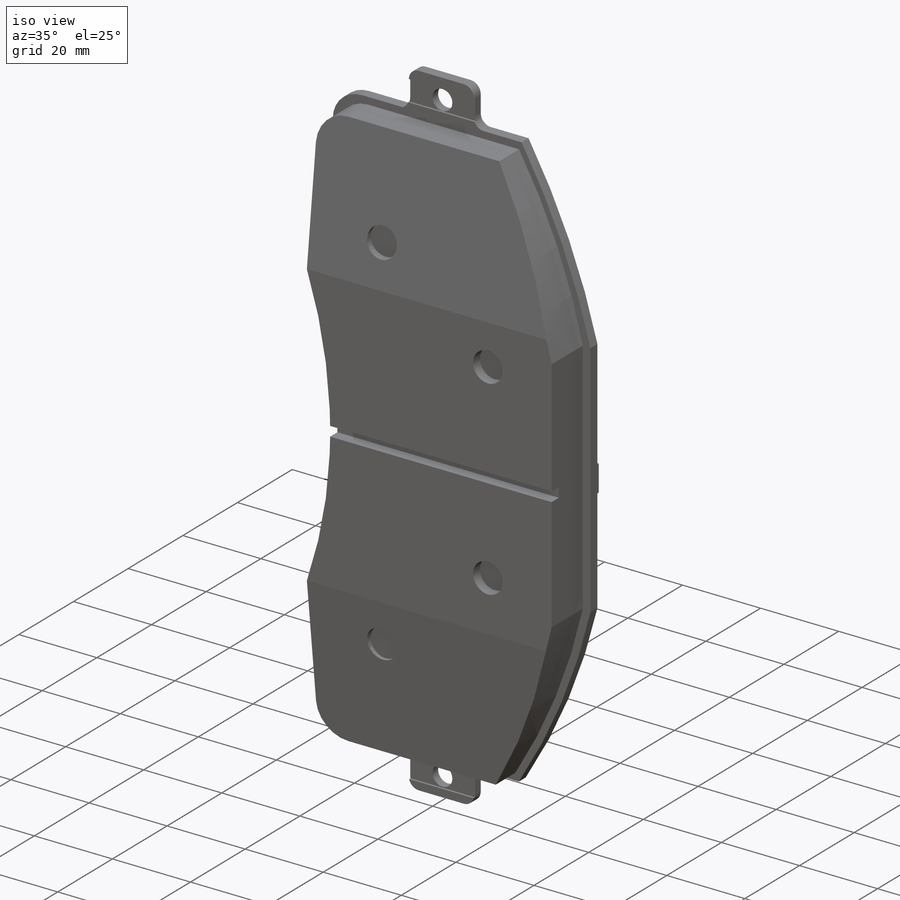
[diagram: iso view]
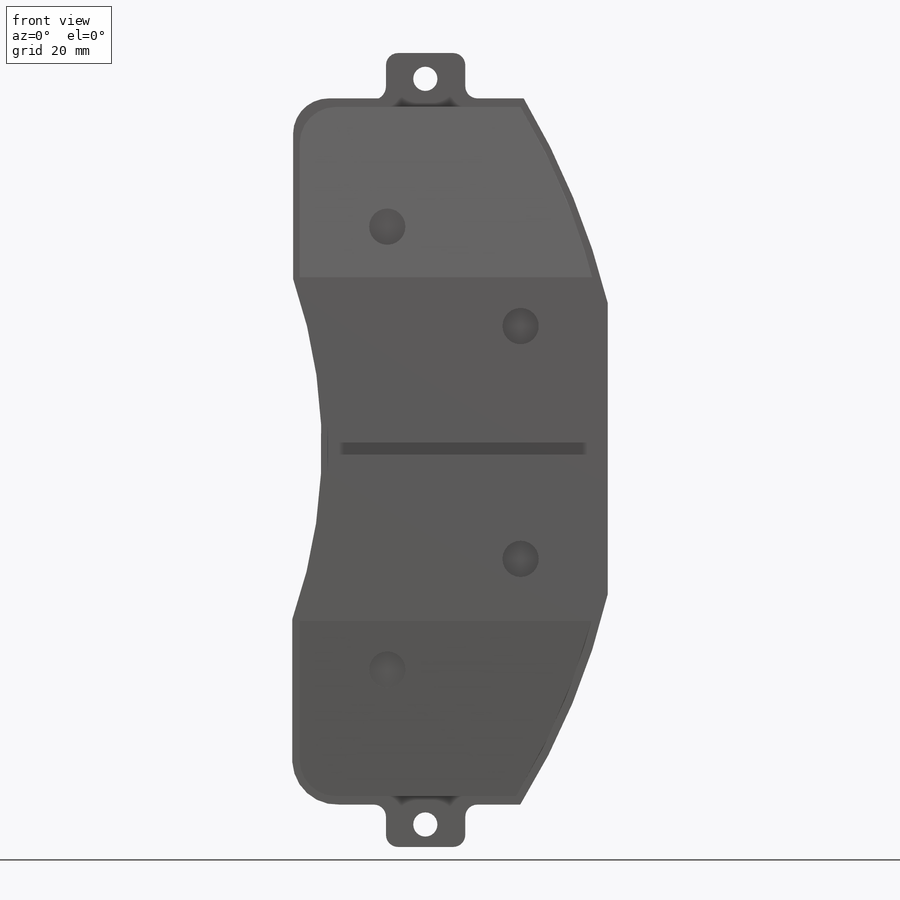
[diagram: front view]
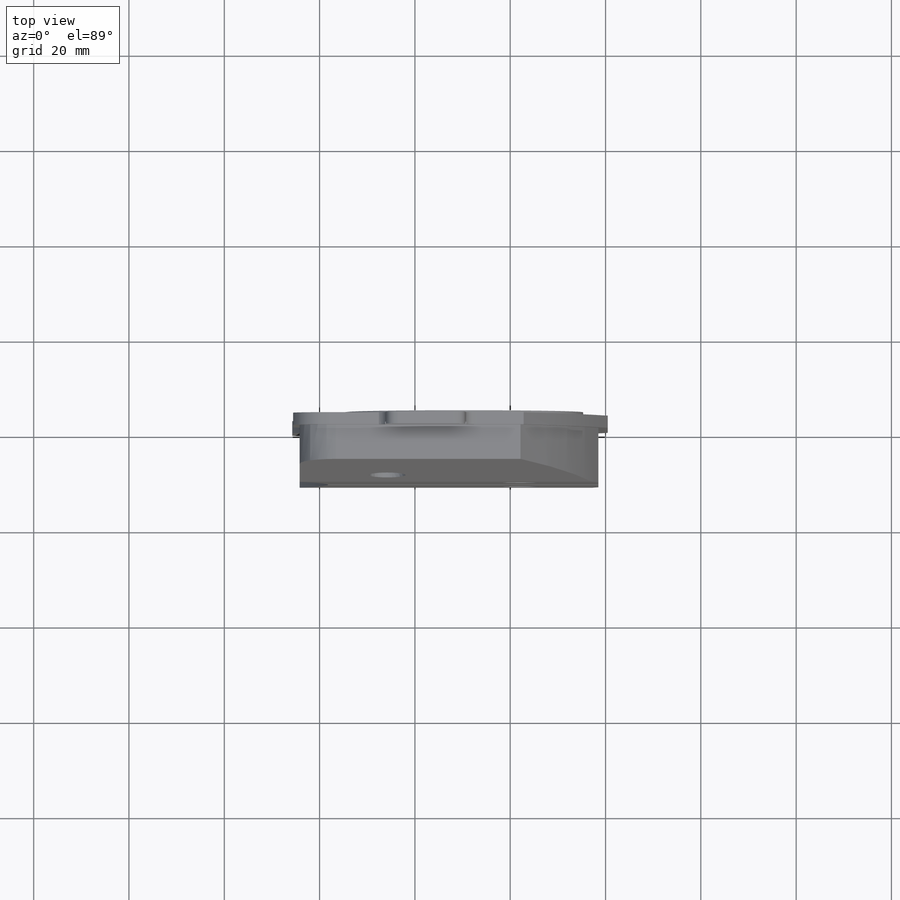
[diagram: top view]
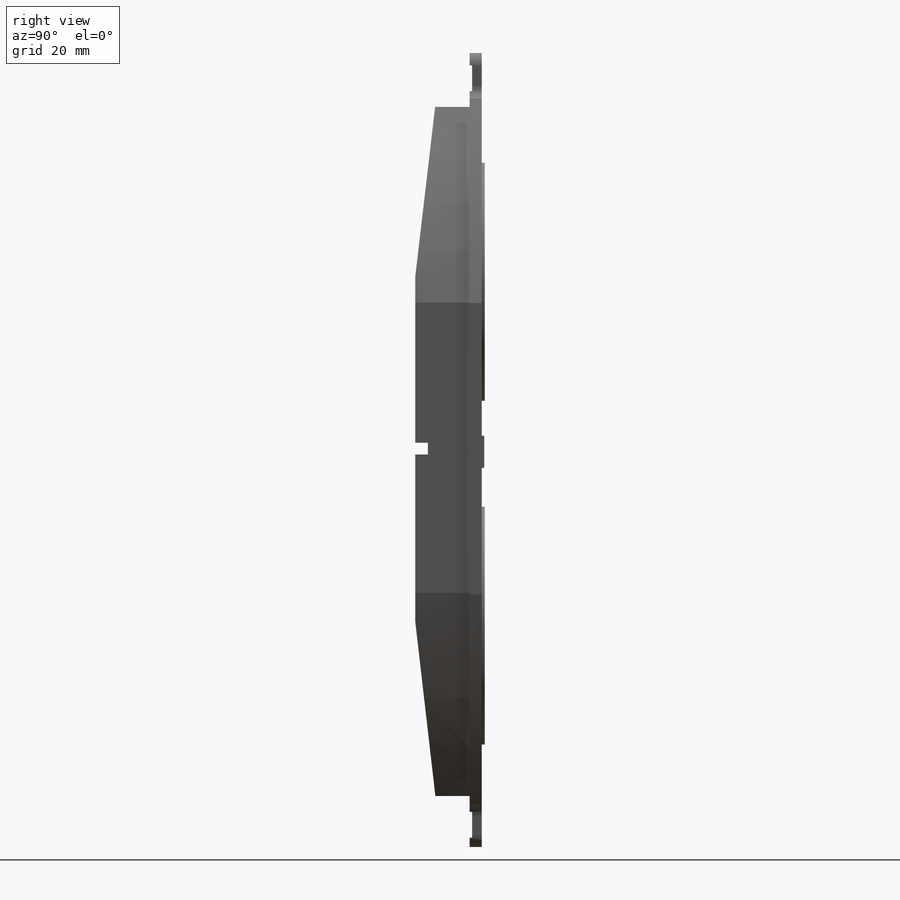
[diagram: right view]
SOLIDWORKS PART (.sldprt)
format: sldprt  version: not decoded by parser v0  size: 327,680 bytes
history: native  units: mm
features: sketch x13, cut_extrude x8, extrude x5, material x1, fillet x1 + 1 further entry (+15 scaffold rows collapsed)
feature tree (44):
  scaffold x15  (default folders/planes/origin — collapsed)
  material  "Material <not specified>"
  "DetailItem3"  RD1=7.62mm RD2=112.11323mm RD3=5.08mm
  sketch  "Sketch2"
  extrude  "Extrude1"  Depth=11.43mm
  sketch  "Sketch3"
  cut_extrude  "Cut-Extrude2"  [1 undecoded]
  fillet  "Fillet1"  Radius=7.62mm
  sketch  "Sketch4"
  cut_extrude  "Cut-Extrude3"  [1 undecoded]
  sketch  "Sketch5"  dims[D1=279.4mm]
  cut_extrude  "Cut-Extrude4"  Depth=25.908mm
  sketch  "Sketch6"
  cut_extrude  "Cut-Extrude5"  [1 undecoded]
  sketch  "Sketch7"  dims[D1=~15.437436mm]
  cut_extrude  "Cut-Extrude6"  Depth=2.54mm
  sketch  "Sketch11"  dims[c1.D1=2.54mm c1.D2=2.54mm c2.D1=2.54mm]
  extrude  "Extrude2"  Depth=2.54mm
  sketch  "Sketch13"  dims[D1=50.0mm]
  extrude  "Extrude4"  Depth=0.635mm
  sketch  "Sketch14"  dims[D1=43.18mm]
  cut_extrude  "Cut-Extrude7"  Depth=2.54mm
  sketch  "Sketch15"  dims[c1.D1=15.24mm c1.D2=10.16mm c1.D3=10.16mm c2.D1=~27.931795mm c2.D2=~19.65412mm]
  extrude  "Extrude5"  Depth=2.54mm
  sketch  "Sketch16"  dims[D1=5.08mm]
  cut_extrude  "Cut-Extrude8"  [1 undecoded]
  sketch  "Sketch17"
  cut_extrude  "Cut-Extrude9"  Depth=0.508mm
  sketch  "Sketch18"
  extrude  "Extrude6"  Depth=0.508mm
decode coverage: 17 of 27 modeling features carry decoded parameters; 1 rows unclassified (native names shown)
note: ~ marks probable driven/reference dimensions
note: 4 parameter values undecoded
summary: no parameter record found for 4 features
note: suppression state not decoded; provenance and decode notes live in map.json
